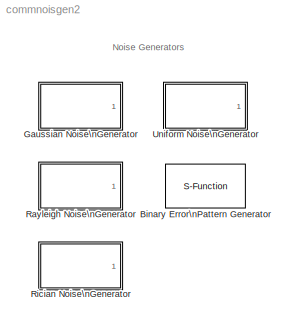
MODEL commnoisgen2
KIND library
BLOCK [S-Function] Binary Error\nPattern Generator
  FunctionName = scomrbitsrc2
  MaskCallbackString = ||||commblkerrpatgen(gcb,'cbFrameBased');||commblkerrpatgen(gcb,'cbOrient');
  MaskDescription = Generate a random binary vector with a limited number of ones.  Use the \"Probabilities\" parameter to specify the probability that the output vector has a single one, two ones, three ones, etc.  The sum of the elements in Probabilities must be less than or equal to one.  One minus this sum is the probability that the output vector contains no ones.
  MaskDisplay = plot(0,0,100,100,[95 5 10 10 10 reshape(([85*[0:1/15:1-1/15]+10; 85*[1/15:1/15:1]+10]),1,30)],[75 75 75 70 95 reshape([randsrc(1,15,[80,90],12345); randsrc(1,15,[80,90],12345)],1,30)]);\ndisp('Error Pattern');
  MaskEnableString = on,on,on,on,on,off,on
  MaskHelp = helpview(commbhelp);
  MaskIconFrame = on
  MaskIconOpaque = on
  MaskIconRotate = none
  MaskIconUnits = autoscale
  MaskInitialization = eStr=commblkerrpatgen(gcb,'init');\nif isequal(eStr.ecode1,1)  \n	error(eStr.emsg1);\nelseif isequal(eStr.ecode2,1),\n	error(eStr.emsg2);\nend
  MaskPromptString = Block length:|Probabilities:|Initial seed:|Sample time:|Frame-based outputs|Blocks per frame:|Interpret vector parameters as 1-D
  MaskSelfModifiable = on
  MaskStyleString = edit,edit,edit,edit,checkbox,edit,checkbox
  MaskToolTipString = on,on,on,on,on,on,on
  MaskTunableValueString = on,on,on,on,on,on,on
  MaskType = Binary Error Pattern Generator
  MaskValueString = 7|0.5|12345|1|off|1|off
  MaskVarAliasString = ,,,,,,
  MaskVariables = n=@1;prob=@2;seed=@3;Ts=@4;frameBased=@5;blksPerFrame=@6;orient=@7;
  MaskVisibilityString = on,on,on,on,on,on,on
  Parameters = n, prob, seed, Ts, frameBased, blksPerFrame, orient
  Ports = [0, 1]
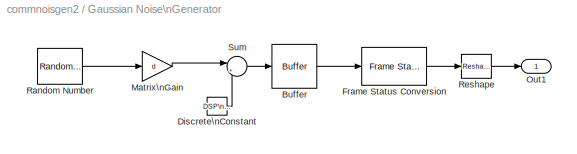
BLOCK [SubSystem] Gaussian Noise\nGenerator
  MaskCallbackString = ||||commblkgaussiansrc2(gcb,'cbFrameBased');||commblkgaussiansrc2(gcb,'cbOrient');
  MaskDescription = Generate Gaussian distributed noise with given mean and variance values.
  MaskDisplay = plot(0,0,100,100,[95 5 10 10 10 (100-15)*[0:1/30:1]+10],[75 75 75 70 95 70    58 76 77 63 86 86 74 78 76 73 82 69 96 73 76 85 75 74 66 77 61 82 91 68    83 87 59 60 80 71]);\ndisp('\\nGaussian')
  MaskEnableString = on,on,on,on,on,off,on
  MaskHelp = helpview(commbhelp)
  MaskIconFrame = on
  MaskIconOpaque = on
  MaskIconRotate = none
  MaskIconUnits = autoscale
  MaskInitialization = if isnumeric(d) & isequal(size(d),[1,1]), d=d*ones(1,max(length(m),length(s)));end\nif(frameBased & sampPerFrame > 1),\n  buffic=commblkgaussiansrc2(gcb,'UpdateIc',{m,d,s}); end;\n[m,d,s,eStr]=commblkgaussiansrc2(gcb,'init',{m,d,s});\nif(eStr.ecode==1)\n    error(eStr.emsg);\nend;
  MaskPromptString = Mean value:|Variance (vector or matrix):|Initial seed:|Sample time:|Frame-based outputs|Samples per frame:|Interpret vector parameters as 1-D
  MaskSelfModifiable = on
  MaskStyleString = edit,edit,edit,edit,checkbox,edit,checkbox
  MaskToolTipString = on,on,on,on,on,on,on
  MaskTunableValueString = on,on,on,on,on,on,on
  MaskType = Gaussian Noise Generator
  MaskValueString = 0|1|41|1|off|1|off
  MaskVarAliasString = ,,,,,,
  MaskVariables = m=@1;d=@2;s=@3;Ts=@4;frameBased=@5;sampPerFrame=@6;orient=@7;
  MaskVisibilityString = on,on,on,on,on,on,on
  Ports = [0, 1]
  TreatAsAtomicUnit = off
BLOCK [Reference] Gaussian Noise\nGenerator/Buffer  REF=dspbuff3/Buffer
  N = 1
  Ports = [1, 1]
  SourceBlock = dspbuff3/Buffer
  SourceType = Buffer
  V = 0
  ic = 0
BLOCK [Reference] Gaussian Noise\nGenerator/Discrete\nConstant  REF=dspsrcs4/DSP\nConstant
  FramebasedOutput = off
  InterpretAs1D = on
  Ports = [0, 1]
  SampleMode = Discrete
  ShowPortLabels = on
  SourceBlock = dspsrcs4/DSP\nConstant
  SourceType = DSP Constant
  Ts = Ts
  Value = m
  additionalParams = off
  allowOverrides = on
  continuousOutput = Sample-based
  dataType = Inherit from 'Constant value'
  discreteOutput = Sample-based (interpret vectors as 1-D)
  fracBitsMode = Best precision
  framePeriod = Ts
  numFracBits = 15
  sampTime = Ts
  udDataType = sfix(16)
  wordLen = 16
BLOCK [Reference] Gaussian Noise\nGenerator/Frame Status Conversion  REF=dspsigattribs/Frame Status\nConversion
  Ports = [1, 1]
  ShowPortLabels = off
  SourceBlock = dspsigattribs/Frame Status\nConversion
  SourceType = Frame Status Conversion
  growRefPort = off
  outframe = Sample-based
BLOCK [Gain] Gaussian Noise\nGenerator/Matrix\nGain
  Gain = d
  Multiplication = Matrix(K*u)
  OutDataTypeMode = Inherit via internal rule
  ParameterDataTypeMode = Inherit via internal rule
  SaturateOnIntegerOverflow = off
BLOCK [Outport] Gaussian Noise\nGenerator/Out1
  IconDisplay = Port number
  InitialOutput = 0
BLOCK [RandomNumber] Gaussian Noise\nGenerator/Random Number
  SampleTime = Ts
  Seed = s
BLOCK [Reference] Gaussian Noise\nGenerator/Reshape  REF=simulink/Math\nOperations/Reshape
  OutputDimensionality = 1-D array
  OutputDimensions = [sampPerFrame,length(s)]
  Ports = [1, 1]
  SourceBlock = simulink/Math\nOperations/Reshape
  SourceType = Reshape
BLOCK [Sum] Gaussian Noise\nGenerator/Sum
  IconShape = round
  Inputs = |++
  Ports = [2, 1]
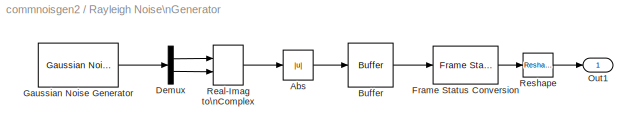
BLOCK [SubSystem] Rayleigh Noise\nGenerator
  MaskCallbackString = |||commblkrayleighsrc2(gcb,'cbFrameBased');||commblkrayleighsrc2(gcb,'cbOrient');
  MaskDescription = Generate Rayleigh distributed noise.The output vector size of this block is the same as the vector size of the seed.
  MaskDisplay = plot(0,0,100,100,[95 5 10 10 10 (100-15)*[0:1/30:1]+10],[75 75 75 70 95 91    87 91 88 81 80 81 85 89 81 91 86 82 89 85 83 88 87 90 94 85 92 78 94 80    80 92 89 77 75 92]);disp('Rayleigh')
  MaskEnableString = on,on,on,on,off,on
  MaskHelp = helpview(commbhelp)
  MaskIconFrame = on
  MaskIconOpaque = on
  MaskIconRotate = none
  MaskIconUnits = autoscale
  MaskInitialization = if(frameBased & sampPerFrame > 1)\n   buffic = commblkrayleighsrc2(gcb,'UpdateIc',{alpha,seed});end;\n[alpha,seed,eStr]=commblkrayleighsrc2(gcb,'init',{alpha,seed});\nif(eStr.ecode==1)\n    error(eStr.emsg);\nend;
  MaskPromptString = Sigma:|Initial seed:|Sample time:|Frame-based outputs|Samples per frame:|Interpret vector parameters as 1-D
  MaskSelfModifiable = on
  MaskStyleString = edit,edit,edit,checkbox,edit,checkbox
  MaskToolTipString = on,on,on,on,on,on
  MaskTunableValueString = on,on,on,on,on,on
  MaskType = Rayleigh Noise Generator
  MaskValueString = 1|47|1|off|1|off
  MaskVarAliasString = ,,,,,
  MaskVariables = alpha=@1;seed=@2;Ts=@3;frameBased=@4;sampPerFrame=@5;orient=@6;
  MaskVisibilityString = on,on,on,on,on,on
  Ports = [0, 1]
  TreatAsAtomicUnit = off
BLOCK [Abs] Rayleigh Noise\nGenerator/Abs
BLOCK [Reference] Rayleigh Noise\nGenerator/Buffer  REF=dspbuff3/Buffer
  N = 1
  Ports = [1, 1]
  SourceBlock = dspbuff3/Buffer
  SourceType = Buffer
  V = 0
  ic = 0
BLOCK [Demux] Rayleigh Noise\nGenerator/Demux
  Outputs = 2
  Ports = [1, 2]
BLOCK [Reference] Rayleigh Noise\nGenerator/Frame Status Conversion  REF=dspsigattribs/Frame Status\nConversion
  Ports = [1, 1]
  ShowPortLabels = off
  SourceBlock = dspsigattribs/Frame Status\nConversion
  SourceType = Frame Status Conversion
  growRefPort = off
  outframe = Sample-based
BLOCK [Reference] Rayleigh Noise\nGenerator/Gaussian Noise Generator  REF=commnoisgen2/Gaussian Noise\nGenerator
  Ports = [0, 1]
  SourceBlock = commnoisgen2/Gaussian Noise\nGenerator
  SourceType = Gaussian Noise Generator
  Ts = Ts
  d = alpha
  frameBased = off
  m = 0
  orient = on
  s = seed
  sampPerFrame = 1
BLOCK [Outport] Rayleigh Noise\nGenerator/Out1
  IconDisplay = Port number
BLOCK [RealImagToComplex] Rayleigh Noise\nGenerator/Real-Imag to\nComplex
  Input = Real and imag
  Ports = [2, 1]
BLOCK [Reference] Rayleigh Noise\nGenerator/Reshape  REF=simulink/Math\nOperations/Reshape
  OutputDimensionality = 1-D array
  OutputDimensions = [1,length(seed)]
  Ports = [1, 1]
  SourceBlock = simulink/Math\nOperations/Reshape
  SourceType = Reshape
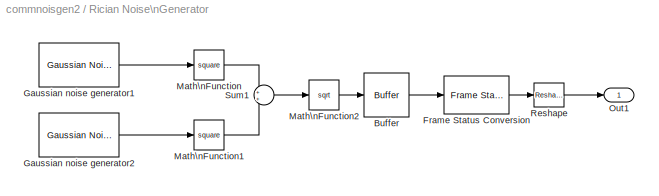
BLOCK [SubSystem] Rician Noise\nGenerator
  MaskCallbackString = commblkriciansrc2(gcb,'SpecMethod');|||||||commblkriciansrc2(gcb,'cbFrameBased');||commblkriciansrc2(gcb,'cbOrient');
  MaskDescription = Generate Rician distributed noise. The output vector size of this block is the same as the vector size of the seed.
  MaskDisplay = plot(0,0,100,100,[95 5 10 10 10 (100-15)*[0:1/30:1]+10],[75 75 75 70 95 90    94 94 90 83 84 79 87 81 94 89 83 89 80 83 93 88 79 91 87 77 79 87 87 82    86 84 75 75 81 75]);\ndisp('Rician');
  MaskEnableString = on,off,off,on,on,on,on,on,off,on
  MaskHelp = helpview(commbhelp)
  MaskIconFrame = on
  MaskIconOpaque = on
  MaskIconRotate = none
  MaskIconUnits = autoscale
  MaskInitialization = if(frameBased & sampPerFrame > 1)\nbuffic=commblkriciansrc2(gcb,'UpdateIc',{iMean, qMean, K, s});end;\n[m1, m2, eStr]=commblkriciansrc2(gcb,'init',{iMean, qMean, K, s});\nif(eStr.ecode==1)\n    error(eStr.emsg);\nend;
  MaskPromptString = Specification method:|In phase component (mean):|Quadrature component (mean):|Rician K-factor:|Sigma:|Initial seed:|Sample time:|Frame-based outputs|Samples per frame:|Interpret vector parameters as 1-D
  MaskSelfModifiable = on
  MaskStyleString = popup(K-factor|Quadrature components),edit,edit,edit,edit,edit,edit,checkbox,edit,checkbox
  MaskToolTipString = on,on,on,on,on,on,on,on,on,on
  MaskTunableValueString = on,on,on,on,on,on,on,on,on,on
  MaskType = Rician Noise Generator
  MaskValueString = K-factor|sqrt(2)|sqrt(2)|2|1|59|1|off|1|off
  MaskVarAliasString = ,,,,,,,,,
  MaskVariables = specMethod=@1;iMean=@2;qMean=@3;K=@4;s=@5;seed=@6;Ts=@7;frameBased=@8;sampPerFrame=@9;orient=@10;
  MaskVisibilityString = on,off,off,on,on,on,on,on,on,on
  Ports = [0, 1]
  TreatAsAtomicUnit = off
BLOCK [Reference] Rician Noise\nGenerator/Buffer  REF=dspbuff3/Buffer
  N = 1
  Ports = [1, 1]
  SourceBlock = dspbuff3/Buffer
  SourceType = Buffer
  V = 0
  ic = 0
BLOCK [Reference] Rician Noise\nGenerator/Frame Status Conversion  REF=dspsigattribs/Frame Status\nConversion
  Ports = [1, 1]
  ShowPortLabels = off
  SourceBlock = dspsigattribs/Frame Status\nConversion
  SourceType = Frame Status Conversion
  growRefPort = off
  outframe = Sample-based
BLOCK [Reference] Rician Noise\nGenerator/Gaussian noise generator1  REF=commnoisgen2/Gaussian Noise\nGenerator
  Ports = [0, 1]
  ShowPortLabels = on
  SourceBlock = commnoisgen2/Gaussian Noise\nGenerator
  SourceType = Gaussian Noise Generator
  Ts = Ts
  d = s.^2
  frameBased = off
  m = m1
  orient = off
  s = seed
  sampPerFrame = 1
BLOCK [Reference] Rician Noise\nGenerator/Gaussian noise generator2  REF=commnoisgen2/Gaussian Noise\nGenerator
  Ports = [0, 1]
  ShowPortLabels = on
  SourceBlock = commnoisgen2/Gaussian Noise\nGenerator
  SourceType = Gaussian Noise Generator
  Ts = Ts
  d = s.^2
  frameBased = off
  m = m2
  orient = off
  s = seed+max(seed)
  sampPerFrame = 1
BLOCK [Math] Rician Noise\nGenerator/Math\nFunction
  Operator = square
  Ports = [1, 1]
BLOCK [Math] Rician Noise\nGenerator/Math\nFunction1
  Operator = square
  Ports = [1, 1]
BLOCK [Math] Rician Noise\nGenerator/Math\nFunction2
  Operator = sqrt
  Ports = [1, 1]
BLOCK [Outport] Rician Noise\nGenerator/Out1
  IconDisplay = Port number
BLOCK [Reference] Rician Noise\nGenerator/Reshape  REF=simulink/Math\nOperations/Reshape
  OutputDimensionality = 1-D array
  OutputDimensions = [1,length(seed)]
  Ports = [1, 1]
  SourceBlock = simulink/Math\nOperations/Reshape
  SourceType = Reshape
BLOCK [Sum] Rician Noise\nGenerator/Sum1
  IconShape = round
  Ports = [2, 1]
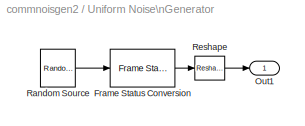
BLOCK [SubSystem] Uniform Noise\nGenerator
  MaskCallbackString = ||||commblkuniformsrc2(gcb,'cbFrameBased');||commblkuniformsrc2(gcb,'cbOrient');
  MaskDescription = Generate uniformly distributed noise between the upper and lower bounds.
  MaskDisplay = plot(0,0,100,100,[95 5 10 10 10 (100-15)*[0:1/30:1]+10],[75 75 75 70 95  94  79 87 84 92 90 84 75 91 83 87 90 93 89 78 83 93 93 83 92 76 82 91 75 77    79 78 87 80 78 75]);disp('Uniform')
  MaskEnableString = on,on,on,on,on,off,on
  MaskHelp = helpview(commbhelp)
  MaskIconFrame = on
  MaskIconOpaque = on
  MaskIconRotate = none
  MaskIconUnits = autoscale
  MaskInitialization = eStr=commblkuniformsrc2(gcb,'init');\nif(eStr.ecode==1)\n    error(eStr.emsg);\nend
  MaskPromptString = Noise lower bound:|Noise upper bound:|Initial seed:|Sample time:|Frame-based outputs|Samples per frame:|Interpret vector parameters as 1-D
  MaskSelfModifiable = on
  MaskStyleString = edit,edit,edit,edit,checkbox,edit,checkbox
  MaskToolTipString = on,on,on,on,on,on,on
  MaskTunableValueString = on,on,on,on,on,on,on
  MaskType = Uniform Noise Generator
  MaskValueString = 0|1|31|1|off|1|off
  MaskVarAliasString = ,,,,,,
  MaskVariables = low=@1;up=@2;seed=@3;Ts=@4;frameBased=@5;sampPerFrame=@6;orient=@7;
  MaskVisibilityString = on,on,on,on,on,on,on
  Ports = [0, 1]
  TreatAsAtomicUnit = off
BLOCK [Reference] Uniform Noise\nGenerator/Frame Status Conversion  REF=dspsigattribs/Frame Status\nConversion
  Ports = [1, 1]
  ShowPortLabels = off
  SourceBlock = dspsigattribs/Frame Status\nConversion
  SourceType = Frame Status Conversion
  growRefPort = off
  outframe = Sample-based
BLOCK [Outport] Uniform Noise\nGenerator/Out1
  IconDisplay = Port number
BLOCK [Reference] Uniform Noise\nGenerator/Random Source  REF=dspsrcs4/Random\nSource
  CltLength = 12
  DataType = Double
  Diagnostics = AllowInheritedTsInSrc
  Inherit = off
  Max = up
  Mean = 0
  Min = low
  NormMethod = Ziggurat
  OutComplex = Real
  Ports = [0, 1]
  RepMode = Specify seed
  SampFrame = 1
  SampMode = Discrete
  SampTime = Ts
  Seed = seed
  SourceBlock = dspsrcs4/Random\nSource
  SourceType = Random Source
  SrcType = Uniform
  Var = 1
BLOCK [Reference] Uniform Noise\nGenerator/Reshape  REF=simulink/Math\nOperations/Reshape
  OutputDimensionality = 1-D array
  OutputDimensions = [sampPerFrame,max([length(low),length(up),length(seed)])]
  Ports = [1, 1]
  SourceBlock = simulink/Math\nOperations/Reshape
  SourceType = Reshape
ANNOTATION (root): Noise Generators
LINE Gaussian Noise\nGenerator/Buffer:1 -> Gaussian Noise\nGenerator/Frame Status Conversion:1
LINE Gaussian Noise\nGenerator/Discrete\nConstant:1 -> Gaussian Noise\nGenerator/Sum:2
LINE Gaussian Noise\nGenerator/Frame Status Conversion:1 -> Gaussian Noise\nGenerator/Reshape:1
LINE Gaussian Noise\nGenerator/Matrix\nGain:1 -> Gaussian Noise\nGenerator/Sum:1
LINE Gaussian Noise\nGenerator/Random Number:1 -> Gaussian Noise\nGenerator/Matrix\nGain:1
LINE Gaussian Noise\nGenerator/Reshape:1 -> Gaussian Noise\nGenerator/Out1:1
LINE Gaussian Noise\nGenerator/Sum:1 -> Gaussian Noise\nGenerator/Buffer:1
LINE Rayleigh Noise\nGenerator/Abs:1 -> Rayleigh Noise\nGenerator/Buffer:1
LINE Rayleigh Noise\nGenerator/Buffer:1 -> Rayleigh Noise\nGenerator/Frame Status Conversion:1
LINE Rayleigh Noise\nGenerator/Demux:1 -> Rayleigh Noise\nGenerator/Real-Imag to\nComplex:1
LINE Rayleigh Noise\nGenerator/Demux:2 -> Rayleigh Noise\nGenerator/Real-Imag to\nComplex:2
LINE Rayleigh Noise\nGenerator/Frame Status Conversion:1 -> Rayleigh Noise\nGenerator/Reshape:1
LINE Rayleigh Noise\nGenerator/Gaussian Noise Generator:1 -> Rayleigh Noise\nGenerator/Demux:1
LINE Rayleigh Noise\nGenerator/Real-Imag to\nComplex:1 -> Rayleigh Noise\nGenerator/Abs:1
LINE Rayleigh Noise\nGenerator/Reshape:1 -> Rayleigh Noise\nGenerator/Out1:1
LINE Rician Noise\nGenerator/Buffer:1 -> Rician Noise\nGenerator/Frame Status Conversion:1
LINE Rician Noise\nGenerator/Frame Status Conversion:1 -> Rician Noise\nGenerator/Reshape:1
LINE Rician Noise\nGenerator/Gaussian noise generator1:1 -> Rician Noise\nGenerator/Math\nFunction:1
LINE Rician Noise\nGenerator/Gaussian noise generator2:1 -> Rician Noise\nGenerator/Math\nFunction1:1
LINE Rician Noise\nGenerator/Math\nFunction1:1 -> Rician Noise\nGenerator/Sum1:2
LINE Rician Noise\nGenerator/Math\nFunction2:1 -> Rician Noise\nGenerator/Buffer:1
LINE Rician Noise\nGenerator/Math\nFunction:1 -> Rician Noise\nGenerator/Sum1:1
LINE Rician Noise\nGenerator/Reshape:1 -> Rician Noise\nGenerator/Out1:1
LINE Rician Noise\nGenerator/Sum1:1 -> Rician Noise\nGenerator/Math\nFunction2:1
LINE Uniform Noise\nGenerator/Frame Status Conversion:1 -> Uniform Noise\nGenerator/Reshape:1
LINE Uniform Noise\nGenerator/Random Source:1 -> Uniform Noise\nGenerator/Frame Status Conversion:1
LINE Uniform Noise\nGenerator/Reshape:1 -> Uniform Noise\nGenerator/Out1:1
